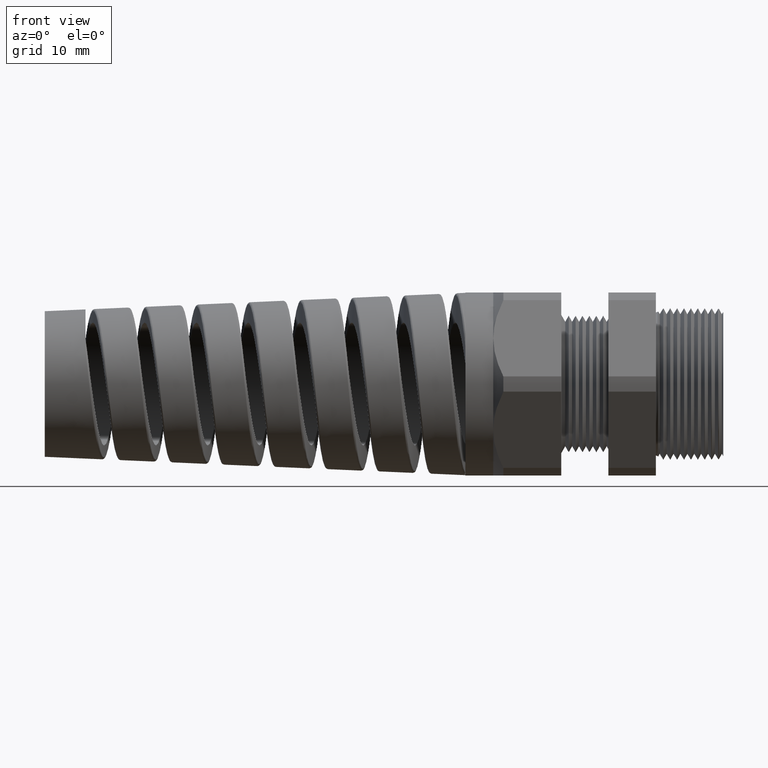
[diagram: clean part render]
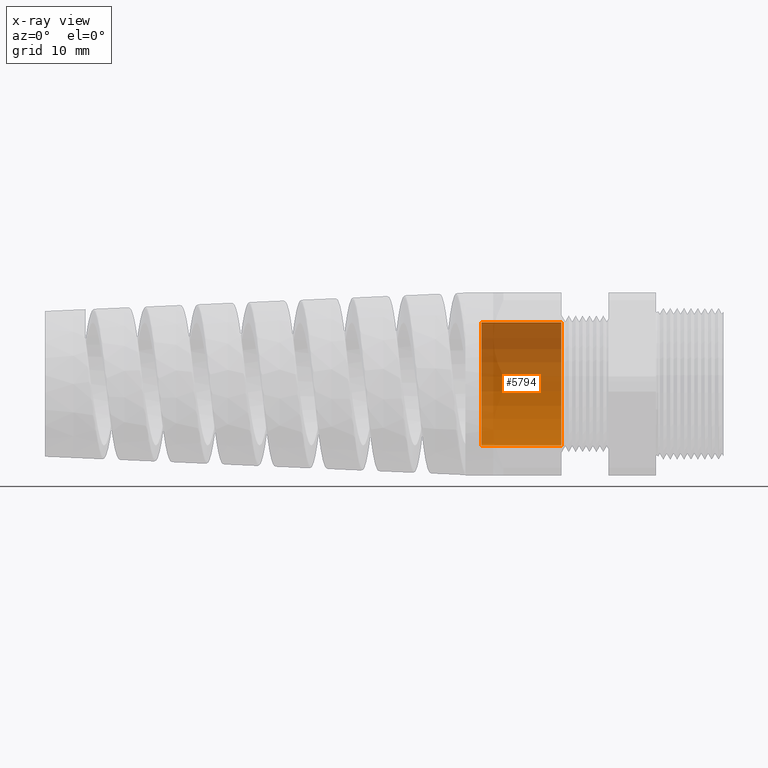
[diagram: x-ray — body ghosted, one internal face saturated and labeled with its STEP entity id]
A machine part, front view, then the same camera in x-ray: the body is ghosted and one INTERNAL B-rep face — a face not visible from any outside direction — is saturated and labeled: STEP entity #5794.
In plain terms, the highlighted cylindrical surface (partial cylindrical patch) has radius 9.0424 mm, axis along (1, 0, 0).
Its self-contained STEP definition (entity closure, byte-faithful):
#5752 = VERTEX_POINT ( 'NONE', #12205 ) ;
#5754 = ORIENTED_EDGE ( 'NONE', *, *, #5755, .F. ) ;
#5755 = EDGE_CURVE ( 'NONE', #5758, #5752, #12247, .T. ) ;
#5758 = VERTEX_POINT ( 'NONE', #12231 ) ;
#5760 = ORIENTED_EDGE ( 'NONE', *, *, #5894, .F. ) ;
#5794 = ADVANCED_FACE ( 'NONE', ( #9788 ), #9787, .T. ) ;
#5798 = EDGE_CURVE ( 'NONE', #5800, #5892, #9782, .T. ) ;
#5800 = VERTEX_POINT ( 'NONE', #9778 ) ;
#5804 = EDGE_LOOP ( 'NONE', ( #5883, #5885, #5754, #5760 ) ) ;
#5883 = ORIENTED_EDGE ( 'NONE', *, *, #5798, .T. ) ;
#5885 = ORIENTED_EDGE ( 'NONE', *, *, #5886, .T. ) ;
#5886 = EDGE_CURVE ( 'NONE', #5892, #5752, #10044, .T. ) ;
#5892 = VERTEX_POINT ( 'NONE', #10030 ) ;
#5894 = EDGE_CURVE ( 'NONE', #5800, #5758, #9980, .T. ) ;
#9778 = CARTESIAN_POINT ( 'NONE',  ( -1.319999999999999800, 0.0000000000000000000, -0.3559999999999999800 ) ) ;
#9779 = DIRECTION ( 'NONE',  ( 0.0000000000000000000, 0.0000000000000000000, -1.000000000000000000 ) ) ;
#9780 = DIRECTION ( 'NONE',  ( 1.000000000000000000, 0.0000000000000000000, 0.0000000000000000000 ) ) ;
#9781 = AXIS2_PLACEMENT_3D ( 'NONE', #9786, #9780, #9779 ) ;
#9782 = CIRCLE ( 'NONE', #9781, 0.3559999999999999800 ) ;
#9783 = DIRECTION ( 'NONE',  ( 0.0000000000000000000, 0.0000000000000000000, -1.000000000000000000 ) ) ;
#9784 = DIRECTION ( 'NONE',  ( 1.000000000000000000, 0.0000000000000000000, 0.0000000000000000000 ) ) ;
#9785 = AXIS2_PLACEMENT_3D ( 'NONE', #9793, #9784, #9783 ) ;
#9786 = CARTESIAN_POINT ( 'NONE',  ( -1.319999999999999800, 0.0000000000000000000, 0.0000000000000000000 ) ) ;
#9787 = CYLINDRICAL_SURFACE ( 'NONE', #9785, 0.3559999999999999800 ) ;
#9788 = FACE_OUTER_BOUND ( 'NONE', #5804, .T. ) ;
#9793 = CARTESIAN_POINT ( 'NONE',  ( 0.0000000000000000000, 0.0000000000000000000, 0.0000000000000000000 ) ) ;
#9977 = DIRECTION ( 'NONE',  ( 1.000000000000000000, 0.0000000000000000000, 0.0000000000000000000 ) ) ;
#9978 = VECTOR ( 'NONE', #9977, 39.37007874015748100 ) ;
#9979 = CARTESIAN_POINT ( 'NONE',  ( 0.0000000000000000000, 0.0000000000000000000, -0.3559999999999999800 ) ) ;
#9980 = LINE ( 'NONE', #9979, #9978 ) ;
#10030 = CARTESIAN_POINT ( 'NONE',  ( -1.319999999999999800, 4.359742604964577000E-017, 0.3559999999999999800 ) ) ;
#10037 = DIRECTION ( 'NONE',  ( 1.000000000000000000, 0.0000000000000000000, 0.0000000000000000000 ) ) ;
#10038 = VECTOR ( 'NONE', #10037, 39.37007874015748100 ) ;
#10039 = CARTESIAN_POINT ( 'NONE',  ( 0.0000000000000000000, 4.359742604964577000E-017, 0.3559999999999999800 ) ) ;
#10044 = LINE ( 'NONE', #10039, #10038 ) ;
#12205 = CARTESIAN_POINT ( 'NONE',  ( -0.8581889763779528800, 4.359742604964577000E-017, 0.3559999999999999800 ) ) ;
#12231 = CARTESIAN_POINT ( 'NONE',  ( -0.8581889763779528800, 0.0000000000000000000, -0.3559999999999999800 ) ) ;
#12243 = DIRECTION ( 'NONE',  ( 0.0000000000000000000, 0.0000000000000000000, -1.000000000000000000 ) ) ;
#12244 = DIRECTION ( 'NONE',  ( 1.000000000000000000, 0.0000000000000000000, 0.0000000000000000000 ) ) ;
#12245 = CARTESIAN_POINT ( 'NONE',  ( -0.8581889763779528800, 0.0000000000000000000, 0.0000000000000000000 ) ) ;
#12246 = AXIS2_PLACEMENT_3D ( 'NONE', #12245, #12244, #12243 ) ;
#12247 = CIRCLE ( 'NONE', #12246, 0.3559999999999999800 ) ;